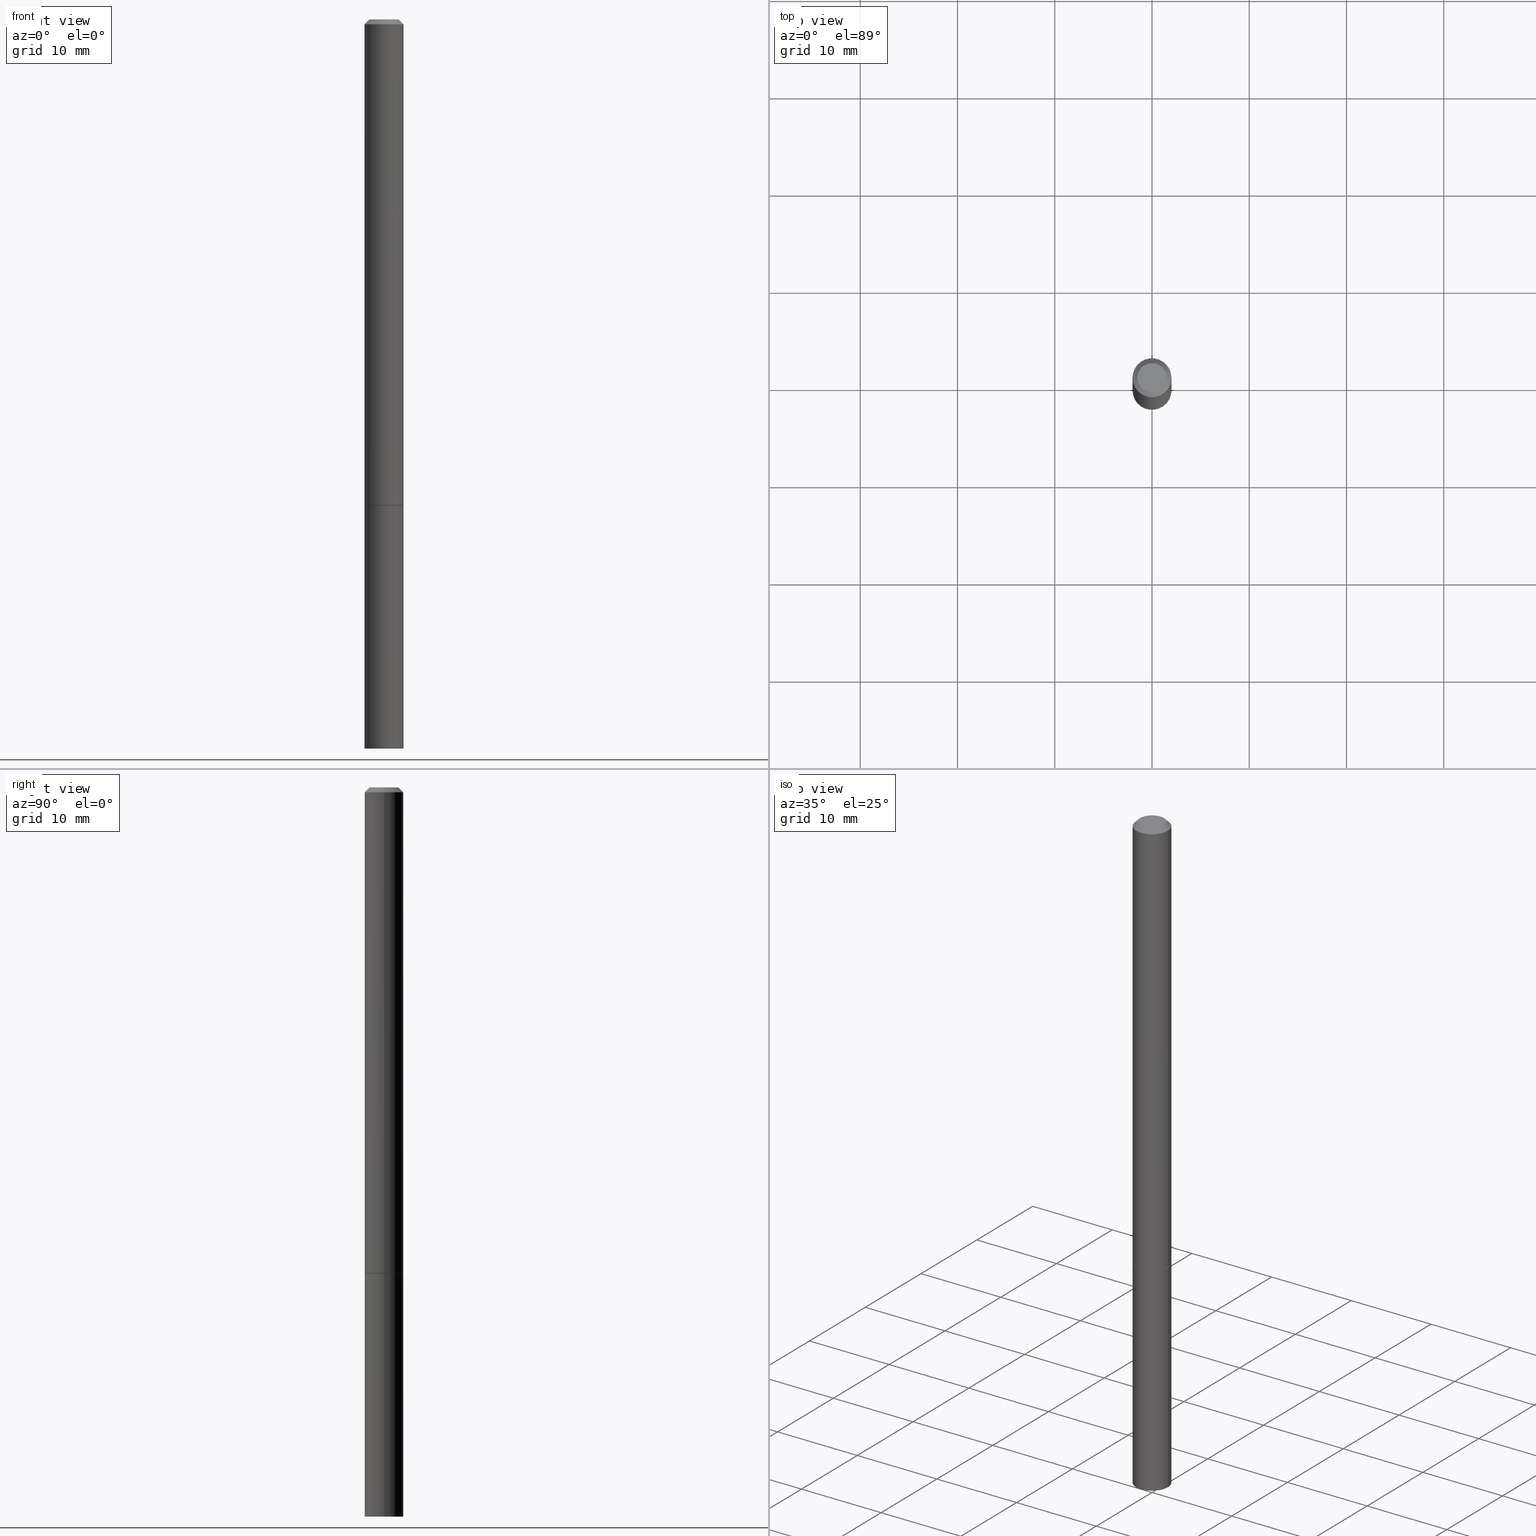
[diagram: canonical four-view strip — front | top / right | iso, engineering-drawing reading convention]
A machine part, canonical four-view strip (front | top / right | iso — engineering-drawing reading convention). The complete STEP part file that produces these views, byte-faithful:
ISO-10303-21;
HEADER;
FILE_DESCRIPTION (( 'STEP AP203' ),
    '1' );
FILE_NAME ('49402.STEP',
    '2024-02-28T19:07:56',
    ( '' ),
    ( '' ),
    'SwSTEP 2.0',
    'SolidWorks 2023',
    '' );
FILE_SCHEMA (( 'CONFIG_CONTROL_DESIGN' ));
ENDSEC;

DATA;
#1 = EDGE_LOOP ( 'NONE', ( #80, #179, #140, #161 ) ) ;
#2 = CARTESIAN_POINT ( 'NONE',  ( 5.499083108678655265E-16, 0.07874999999998968936, -2.952800000000000313 ) ) ;
#3 = ADVANCED_FACE ( 'NONE', ( #59 ), #30, .T. ) ;
#4 = DIRECTION ( 'NONE',  ( -2.445468806185136597E-29, 3.491481338843145583E-15, 1.000000000000000000 ) ) ;
#5 = CONICAL_SURFACE ( 'NONE', #202, 0.07874999999999973688, 0.7853981633974472798 ) ;
#6 = CIRCLE ( 'NONE', #42, 0.07774999999999999967 ) ;
#7 = MANIFOLD_SOLID_BREP ( 'Body-Move/Copy2[1]', #357 ) ;
#8 = DIRECTION ( 'NONE',  ( 2.438088387897960049E-29, -3.491481338843145188E-15, -1.000000000000000000 ) ) ;
#9 = CARTESIAN_POINT ( 'NONE',  ( 4.813905344975440714E-29, -6.872981015512730918E-15, -1.968499999999999694 ) ) ;
#10 = CARTESIAN_POINT ( 'NONE',  ( -0.07875000000000000056, 5.595524044110789003E-16, -3.873661383575737792E-30 ) ) ;
#11 = AXIS2_PLACEMENT_3D ( 'NONE', #90, #342, #87 ) ;
#12 = CARTESIAN_POINT ( 'NONE',  ( 4.813905344975440714E-29, -6.872981015512730918E-15, -1.968499999999999694 ) ) ;
#13 = DIRECTION ( 'NONE',  ( -2.445468806185136877E-29, 3.491481338843145188E-15, 1.000000000000000000 ) ) ;
#14 = DIRECTION ( 'NONE',  ( -2.445468806185136597E-29, 3.491481338843145583E-15, 1.000000000000000000 ) ) ;
#15 = ADVANCED_FACE ( 'NONE', ( #141 ), #5, .T. ) ;
#16 = CARTESIAN_POINT ( 'NONE',  ( 0.05874999999999976769, -5.065740507352226296E-16, 3.205406768517973136E-30 ) ) ;
#17 = ORIENTED_EDGE ( 'NONE', *, *, #259, .T. ) ;
#18 = DATE_AND_TIME ( #60, #122 ) ;
#19 = CARTESIAN_POINT ( 'NONE',  ( 4.890937612370276662E-31, -6.982962677686296539E-17, -0.02000000000000001776 ) ) ;
#20 = AXIS2_PLACEMENT_3D ( 'NONE', #261, #289, #346 ) ;
#21 = PERSON_AND_ORGANIZATION ( #86, #109 ) ;
#22 = DIRECTION ( 'NONE',  ( 2.438088387897960049E-29, -3.491481338843145188E-15, -1.000000000000000000 ) ) ;
#23 = PERSON_AND_ORGANIZATION_ROLE ( 'classification_officer' ) ;
#24 = VERTEX_POINT ( 'NONE', #359 ) ;
#25 = CC_DESIGN_DATE_AND_TIME_ASSIGNMENT ( #225, #131, ( #153 ) ) ;
#26 = APPLICATION_PROTOCOL_DEFINITION ( 'international standard', 'config_control_design', 1994, #232 ) ;
#27 = EDGE_LOOP ( 'NONE', ( #149, #45, #297, #227 ) ) ;
#28 = DIRECTION ( 'NONE',  ( 1.000000000000000000, 0.000000000000000000, 0.000000000000000000 ) ) ;
#29 = VECTOR ( 'NONE', #269, 39.37007874015748143 ) ;
#30 = CYLINDRICAL_SURFACE ( 'NONE', #214, 0.07874999999999987566 ) ;
#31 = UNCERTAINTY_MEASURE_WITH_UNIT (LENGTH_MEASURE( 1.000000000000000082E-05 ), #175, 'distance_accuracy_value', 'NONE');
#32 = DIRECTION ( 'NONE',  ( 1.000000000000000000, -6.982962677686265922E-15, 4.876176775795935232E-29 ) ) ;
#33 = DIRECTION ( 'NONE',  ( 1.000000000000000000, -6.982962677686266711E-15, 0.000000000000000000 ) ) ;
#34 = CARTESIAN_POINT ( 'NONE',  ( 4.813905344975440714E-29, -6.872981015512730918E-15, -1.968499999999999694 ) ) ;
#35 = AXIS2_PLACEMENT_3D ( 'NONE', #2, #8, #64 ) ;
#36 = CARTESIAN_POINT ( 'NONE',  ( 4.813905344975440714E-29, -6.872981015512730918E-15, -1.968499999999999694 ) ) ;
#37 = EDGE_CURVE ( 'NONE', #275, #310, #102, .T. ) ;
#38 = DIRECTION ( 'NONE',  ( -2.445468806185136597E-29, 3.491481338843145583E-15, 1.000000000000000000 ) ) ;
#39 = ADVANCED_FACE ( 'NONE', ( #220 ), #335, .F. ) ;
#40 = CARTESIAN_POINT ( 'NONE',  ( -0.07875000000000000056, -8.031761152013305527E-15, -1.968499999999999694 ) ) ;
#41 = CLOSED_SHELL ( 'NONE', ( #231, #132, #326, #15, #3, #188, #305, #39 ) ) ;
#42 = AXIS2_PLACEMENT_3D ( 'NONE', #34, #235, #119 ) ;
#43 = PRODUCT_DEFINITION ( 'UNKNOWN', '', #253, #56 ) ;
#44 = DIRECTION ( 'NONE',  ( 1.000000000000000000, -6.982962677686265922E-15, 4.876176775795935232E-29 ) ) ;
#45 = ORIENTED_EDGE ( 'NONE', *, *, #221, .T. ) ;
#46 = EDGE_LOOP ( 'NONE', ( #130, #336, #106, #330 ) ) ;
#47 = CARTESIAN_POINT ( 'NONE',  ( 0.000000000000000000, 0.000000000000000000, 0.000000000000000000 ) ) ;
#48 = AXIS2_PLACEMENT_3D ( 'NONE', #65, #38, #287 ) ;
#49 = FACE_OUTER_BOUND ( 'NONE', #366, .T. ) ;
#50 = EDGE_CURVE ( 'NONE', #180, #337, #53, .T. ) ;
#51 = COORDINATED_UNIVERSAL_TIME_OFFSET ( 5, 0, .BEHIND. ) ;
#52 = ORIENTED_EDGE ( 'NONE', *, *, #259, .F. ) ;
#53 = LINE ( 'NONE', #135, #209 ) ;
#54 = CIRCLE ( 'NONE', #78, 0.05874999999999976769 ) ;
#55 = CIRCLE ( 'NONE', #358, 0.07875000000000000056 ) ;
#56 = DESIGN_CONTEXT ( 'detailed design', #232, 'design' ) ;
#57 = ORIENTED_EDGE ( 'NONE', *, *, #362, .T. ) ;
#58 = CALENDAR_DATE ( 2024, 28, 2 ) ;
#59 = FACE_OUTER_BOUND ( 'NONE', #186, .T. ) ;
#60 = CALENDAR_DATE ( 2024, 28, 2 ) ;
#61 = ORIENTED_EDGE ( 'NONE', *, *, #37, .T. ) ;
#62 = CIRCLE ( 'NONE', #332, 0.07774999999999999967 ) ;
#63 = DIRECTION ( 'NONE',  ( 1.000000000000000000, -6.982962677686261977E-15, 0.000000000000000000 ) ) ;
#64 = DIRECTION ( 'NONE',  ( -1.000000000000000000, 6.982962677686265922E-15, -4.876176775795935793E-29 ) ) ;
#65 = CARTESIAN_POINT ( 'NONE',  ( 4.813905344975440714E-29, -6.872981015512730918E-15, -1.968499999999999694 ) ) ;
#66 = CARTESIAN_POINT ( 'NONE',  ( -0.07875000000000000056, -8.031761152013305527E-15, -2.952799999999999869 ) ) ;
#67 = VECTOR ( 'NONE', #205, 39.37007874015748143 ) ;
#68 = CC_DESIGN_APPROVAL ( #262, ( #153 ) ) ;
#69 = FACE_OUTER_BOUND ( 'NONE', #251, .T. ) ;
#70 = CARTESIAN_POINT ( 'NONE',  ( 4.890937612370276662E-31, -6.982962677686296539E-17, -0.02000000000000001776 ) ) ;
#71 = VECTOR ( 'NONE', #168, 39.37007874015748143 ) ;
#72 =( NAMED_UNIT ( * ) SI_UNIT ( $, .STERADIAN. ) SOLID_ANGLE_UNIT ( ) );
#73 = ORIENTED_EDGE ( 'NONE', *, *, #146, .T. ) ;
#74 = AXIS2_PLACEMENT_3D ( 'NONE', #344, #201, #234 ) ;
#75 = COORDINATED_UNIVERSAL_TIME_OFFSET ( 5, 0, .BEHIND. ) ;
#76 = DIRECTION ( 'NONE',  ( 1.000000000000000000, -6.982962677686266711E-15, 4.876176775795935793E-29 ) ) ;
#77 = ORIENTED_EDGE ( 'NONE', *, *, #324, .F. ) ;
#78 = AXIS2_PLACEMENT_3D ( 'NONE', #291, #91, #236 ) ;
#79 = DATE_AND_TIME ( #137, #334 ) ;
#80 = ORIENTED_EDGE ( 'NONE', *, *, #197, .T. ) ;
#81 = APPROVAL_STATUS ( 'not_yet_approved' ) ;
#82 = VERTEX_POINT ( 'NONE', #361 ) ;
#83 = FACE_OUTER_BOUND ( 'NONE', #281, .T. ) ;
#84 = CC_DESIGN_PERSON_AND_ORGANIZATION_ASSIGNMENT ( #244, #185, ( #253 ) ) ;
#85 = AXIS2_PLACEMENT_3D ( 'NONE', #242, #327, #355 ) ;
#86 = PERSON ( 'UNSPECIFIED', 'UNSPECIFIED', 'UNSPECIFIED', ('UNSPECIFIED'), ('UNSPECIFIED'), ('UNSPECIFIED') ) ;
#87 = DIRECTION ( 'NONE',  ( 1.000000000000000000, -6.982962677686261977E-15, 0.000000000000000000 ) ) ;
#88 = CARTESIAN_POINT ( 'NONE',  ( -0.07874999999999987566, 5.595524044110780128E-16, -3.873661383575732186E-30 ) ) ;
#89 = DIRECTION ( 'NONE',  ( -2.445468806185136597E-29, 3.491481338843145583E-15, 1.000000000000000000 ) ) ;
#90 = CARTESIAN_POINT ( 'NONE',  ( 4.811459876169255671E-29, -6.869489534173887122E-15, -1.967499999999999805 ) ) ;
#91 = DIRECTION ( 'NONE',  ( -2.445468806185136597E-29, 3.491481338843145583E-15, 1.000000000000000000 ) ) ;
#92 = DIRECTION ( 'NONE',  ( -2.445468806185136597E-29, 3.491481338843145583E-15, 1.000000000000000000 ) ) ;
#93 = FACE_OUTER_BOUND ( 'NONE', #217, .T. ) ;
#94 = AXIS2_PLACEMENT_3D ( 'NONE', #298, #176, #294 ) ;
#95 = EDGE_CURVE ( 'NONE', #180, #341, #62, .T. ) ;
#96 = CARTESIAN_POINT ( 'NONE',  ( 0.000000000000000000, 0.000000000000000000, 0.000000000000000000 ) ) ;
#97 = ORIENTED_EDGE ( 'NONE', *, *, #105, .T. ) ;
#98 = ADVANCED_FACE ( 'NONE', ( #144 ), #117, .T. ) ;
#99 = CARTESIAN_POINT ( 'NONE',  ( -0.07774999999999999967, -6.315235584111030723E-15, -1.968499999999999694 ) ) ;
#100 = COORDINATED_UNIVERSAL_TIME_OFFSET ( 5, 0, .BEHIND. ) ;
#101 = ORIENTED_EDGE ( 'NONE', *, *, #105, .F. ) ;
#102 = CIRCLE ( 'NONE', #252, 0.05874999999999976769 ) ;
#103 = AXIS2_PLACEMENT_3D ( 'NONE', #120, #290, #318 ) ;
#104 = CARTESIAN_POINT ( 'NONE',  ( 0.000000000000000000, 0.000000000000000000, 0.000000000000000000 ) ) ;
#105 = EDGE_CURVE ( 'NONE', #341, #180, #6, .T. ) ;
#106 = ORIENTED_EDGE ( 'NONE', *, *, #324, .T. ) ;
#107 = ORIENTED_EDGE ( 'NONE', *, *, #155, .F. ) ;
#108 = VECTOR ( 'NONE', #13, 39.37007874015748143 ) ;
#109 = ORGANIZATION ( 'UNSPECIFIED', 'UNSPECIFIED', '' ) ;
#110 = COORDINATED_UNIVERSAL_TIME_OFFSET ( 5, 0, .BEHIND. ) ;
#111 = VERTEX_POINT ( 'NONE', #230 ) ;
#112 = EDGE_CURVE ( 'NONE', #24, #82, #224, .T. ) ;
#113 = ORIENTED_EDGE ( 'NONE', *, *, #362, .F. ) ;
#114 = DIMENSIONAL_EXPONENTS ( 1.000000000000000000, 0.000000000000000000, 0.000000000000000000, 0.000000000000000000, 0.000000000000000000, 0.000000000000000000, 0.000000000000000000 ) ;
#115 = DIRECTION ( 'NONE',  ( -2.445468806185136597E-29, 3.491481338843145583E-15, 1.000000000000000000 ) ) ;
#116 = AXIS2_PLACEMENT_3D ( 'NONE', #47, #14, #44 ) ;
#117 = CYLINDRICAL_SURFACE ( 'NONE', #166, 0.07875000000000000056 ) ;
#118 = PLANE ( 'NONE',  #103 ) ;
#119 = DIRECTION ( 'NONE',  ( 1.000000000000000000, -6.982962677686261977E-15, 0.000000000000000000 ) ) ;
#120 = CARTESIAN_POINT ( 'NONE',  ( 5.499083108678415648E-16, 0.07874999999999311717, -1.968500000000000139 ) ) ;
#121 = AXIS2_PLACEMENT_3D ( 'NONE', #187, #22, #307 ) ;
#122 = LOCAL_TIME ( 14, 7, 56.00000000000000000, #75 ) ;
#123 = DIRECTION ( 'NONE',  ( -0.7071067811865232589, 7.493145998870265808E-15, 0.7071067811865715536 ) ) ;
#124 = DIRECTION ( 'NONE',  ( -1.000000000000000000, 6.982962677686266711E-15, 0.000000000000000000 ) ) ;
#125 = MANIFOLD_SOLID_BREP ( 'Body-Move/Copy2[2]', #41 ) ;
#126 = AXIS2_PLACEMENT_3D ( 'NONE', #70, #154, #124 ) ;
#127 = APPROVAL ( #276, 'UNSPECIFIED' ) ;
#128 = PLANE ( 'NONE',  #85 ) ;
#129 = CARTESIAN_POINT ( 'NONE',  ( -0.07874999999999973688, 4.800786840909286670E-16, -0.02000000000000001776 ) ) ;
#130 = ORIENTED_EDGE ( 'NONE', *, *, #283, .F. ) ;
#131 = DATE_TIME_ROLE ( 'classification_date' ) ;
#132 = ADVANCED_FACE ( 'NONE', ( #83 ), #172, .T. ) ;
#133 = DIRECTION ( 'NONE',  ( -1.000000000000000000, 6.982962677686266711E-15, 0.000000000000000000 ) ) ;
#134 = SHAPE_DEFINITION_REPRESENTATION ( #302, #256 ) ;
#135 = CARTESIAN_POINT ( 'NONE',  ( 0.07774999999999999967, -7.415906363702837461E-15, -1.968499999999999694 ) ) ;
#136 = APPLICATION_CONTEXT ( 'configuration controlled 3d designs of mechanical parts and assemblies' ) ;
#137 = CALENDAR_DATE ( 2024, 28, 2 ) ;
#138 = ORIENTED_EDGE ( 'NONE', *, *, #283, .T. ) ;
#139 = APPROVAL_DATE_TIME ( #79, #127 ) ;
#140 = ORIENTED_EDGE ( 'NONE', *, *, #349, .F. ) ;
#141 = FACE_OUTER_BOUND ( 'NONE', #46, .T. ) ;
#142 = CARTESIAN_POINT ( 'NONE',  ( 0.000000000000000000, 0.000000000000000000, 0.000000000000000000 ) ) ;
#143 = CARTESIAN_POINT ( 'NONE',  ( 7.220980290903470182E-29, -1.030964609733603853E-14, -2.952799999999999869 ) ) ;
#144 = FACE_OUTER_BOUND ( 'NONE', #1, .T. ) ;
#145 = DIRECTION ( 'NONE',  ( -2.445468806185136597E-29, 3.491481338843145583E-15, 1.000000000000000000 ) ) ;
#146 = EDGE_CURVE ( 'NONE', #223, #24, #233, .T. ) ;
#147 = DIRECTION ( 'NONE',  ( -2.445468806185136597E-29, 3.491481338843145583E-15, 1.000000000000000000 ) ) ;
#148 = DIRECTION ( 'NONE',  ( 1.000000000000000000, -6.982962677686261977E-15, 0.000000000000000000 ) ) ;
#149 = ORIENTED_EDGE ( 'NONE', *, *, #237, .F. ) ;
#150 = CC_DESIGN_PERSON_AND_ORGANIZATION_ASSIGNMENT ( #365, #23, ( #153 ) ) ;
#151 = CARTESIAN_POINT ( 'NONE',  ( 0.07874999999999987566, -5.499083108677926554E-16, 3.839989210939293411E-30 ) ) ;
#152 = CONICAL_SURFACE ( 'NONE', #126, 0.07874999999999973688, 0.7853981633974472798 ) ;
#153 = SECURITY_CLASSIFICATION ( '', '', #278 ) ;
#154 = DIRECTION ( 'NONE',  ( 2.445468806185136597E-29, -3.491481338843145583E-15, -1.000000000000000000 ) ) ;
#155 = EDGE_CURVE ( 'NONE', #223, #337, #265, .T. ) ;
#156 = PERSON_AND_ORGANIZATION_ROLE ( 'creator' ) ;
#157 = ORIENTED_EDGE ( 'NONE', *, *, #95, .T. ) ;
#158 = APPROVAL_STATUS ( 'not_yet_approved' ) ;
#159 = ORIENTED_EDGE ( 'NONE', *, *, #349, .T. ) ;
#160 = PERSON_AND_ORGANIZATION ( #86, #109 ) ;
#161 = ORIENTED_EDGE ( 'NONE', *, *, #285, .F. ) ;
#162 = PERSON_AND_ORGANIZATION ( #86, #109 ) ;
#163 = CARTESIAN_POINT ( 'NONE',  ( 0.000000000000000000, 0.000000000000000000, 0.000000000000000000 ) ) ;
#164 = PERSON_AND_ORGANIZATION ( #86, #109 ) ;
#165 = VERTEX_POINT ( 'NONE', #198 ) ;
#166 = AXIS2_PLACEMENT_3D ( 'NONE', #142, #170, #32 ) ;
#167 = CC_DESIGN_SECURITY_CLASSIFICATION ( #153, ( #253 ) ) ;
#168 = DIRECTION ( 'NONE',  ( -2.445468806185136877E-29, 3.491481338843145188E-15, 1.000000000000000000 ) ) ;
#169 = DIRECTION ( 'NONE',  ( 1.000000000000000000, -6.982962677686261977E-15, 0.000000000000000000 ) ) ;
#170 = DIRECTION ( 'NONE',  ( -2.445468806185136597E-29, 3.491481338843145583E-15, 1.000000000000000000 ) ) ;
#171 = CIRCLE ( 'NONE', #191, 0.07875000000000000056 ) ;
#172 = CYLINDRICAL_SURFACE ( 'NONE', #74, 0.07874999999999987566 ) ;
#173 = CARTESIAN_POINT ( 'NONE',  ( 4.813905344975440714E-29, -6.872981015512730918E-15, -1.968499999999999694 ) ) ;
#174 = ADVANCED_FACE ( 'NONE', ( #323 ), #203, .T. ) ;
#175 =( CONVERSION_BASED_UNIT ( 'INCH', #354 ) LENGTH_UNIT ( ) NAMED_UNIT ( #114 ) );
#176 = DIRECTION ( 'NONE',  ( -2.445468806185136597E-29, 3.491481338843145583E-15, 1.000000000000000000 ) ) ;
#177 =( GEOMETRIC_REPRESENTATION_CONTEXT ( 3 ) GLOBAL_UNCERTAINTY_ASSIGNED_CONTEXT ( ( #31 ) ) GLOBAL_UNIT_ASSIGNED_CONTEXT ( ( #175, #352, #72 ) ) REPRESENTATION_CONTEXT ( 'NONE', 'WORKASPACE' ) );
#178 = CC_DESIGN_APPROVAL ( #127, ( #43 ) ) ;
#179 = ORIENTED_EDGE ( 'NONE', *, *, #237, .T. ) ;
#180 = VERTEX_POINT ( 'NONE', #257 ) ;
#181 = CYLINDRICAL_SURFACE ( 'NONE', #116, 0.07875000000000000056 ) ;
#182 = CIRCLE ( 'NONE', #216, 0.07874999999999973688 ) ;
#183 = APPROVAL_PERSON_ORGANIZATION ( #21, #215, #363 ) ;
#184 = ADVANCED_FACE ( 'NONE', ( #319 ), #118, .F. ) ;
#185 = PERSON_AND_ORGANIZATION_ROLE ( 'design_supplier' ) ;
#186 = EDGE_LOOP ( 'NONE', ( #212, #193, #241, #300 ) ) ;
#187 = CARTESIAN_POINT ( 'NONE',  ( 4.102490573140664535E-16, 0.05874999999999976769, -2.051245286570339909E-16 ) ) ;
#188 = ADVANCED_FACE ( 'NONE', ( #320 ), #229, .T. ) ;
#189 = PERSON_AND_ORGANIZATION_ROLE ( 'creator' ) ;
#190 = DIRECTION ( 'NONE',  ( -2.445468806185136597E-29, 3.491481338843145583E-15, 1.000000000000000000 ) ) ;
#191 = AXIS2_PLACEMENT_3D ( 'NONE', #12, #92, #148 ) ;
#192 = PRODUCT_RELATED_PRODUCT_CATEGORY ( 'detail', '', ( #271 ) ) ;
#193 = ORIENTED_EDGE ( 'NONE', *, *, #155, .T. ) ;
#194 = PERSON_AND_ORGANIZATION ( #86, #109 ) ;
#195 = ORIENTED_EDGE ( 'NONE', *, *, #50, .F. ) ;
#196 = DIRECTION ( 'NONE',  ( 1.000000000000000000, -6.982962677686261977E-15, 0.000000000000000000 ) ) ;
#197 = EDGE_CURVE ( 'NONE', #111, #226, #55, .T. ) ;
#198 = CARTESIAN_POINT ( 'NONE',  ( 0.07875000000000000056, -7.422889326380523475E-15, -1.968499999999999694 ) ) ;
#199 = DIRECTION ( 'NONE',  ( -2.445468806185136877E-29, 3.491481338843145188E-15, 1.000000000000000000 ) ) ;
#200 = EDGE_CURVE ( 'NONE', #295, #165, #282, .T. ) ;
#201 = DIRECTION ( 'NONE',  ( -2.445468806185136597E-29, 3.491481338843145583E-15, 1.000000000000000000 ) ) ;
#202 = AXIS2_PLACEMENT_3D ( 'NONE', #19, #279, #133 ) ;
#203 = PLANE ( 'NONE',  #35 ) ;
#204 = CC_DESIGN_PERSON_AND_ORGANIZATION_ASSIGNMENT ( #160, #303, ( #271 ) ) ;
#205 = DIRECTION ( 'NONE',  ( -2.445468806185136877E-29, 3.491481338843145188E-15, 1.000000000000000000 ) ) ;
#206 = EDGE_CURVE ( 'NONE', #82, #24, #182, .T. ) ;
#207 =( LENGTH_UNIT ( ) NAMED_UNIT ( * ) SI_UNIT ( $, .METRE. ) );
#208 = AXIS2_PLACEMENT_3D ( 'NONE', #36, #4, #169 ) ;
#209 = VECTOR ( 'NONE', #248, 39.37007874015748854 ) ;
#210 = EDGE_LOOP ( 'NONE', ( #353, #61 ) ) ;
#211 = LINE ( 'NONE', #129, #309 ) ;
#212 = ORIENTED_EDGE ( 'NONE', *, *, #146, .F. ) ;
#213 = DATE_AND_TIME ( #58, #328 ) ;
#214 = AXIS2_PLACEMENT_3D ( 'NONE', #163, #272, #304 ) ;
#215 = APPROVAL ( #158, 'UNSPECIFIED' ) ;
#216 = AXIS2_PLACEMENT_3D ( 'NONE', #286, #145, #33 ) ;
#217 = EDGE_LOOP ( 'NONE', ( #222, #138, #351, #77 ) ) ;
#218 = LOCAL_TIME ( 14, 7, 56.00000000000000000, #100 ) ;
#219 = APPROVAL_ROLE ( '' ) ;
#220 = FACE_OUTER_BOUND ( 'NONE', #210, .T. ) ;
#221 = EDGE_CURVE ( 'NONE', #226, #111, #292, .T. ) ;
#222 = ORIENTED_EDGE ( 'NONE', *, *, #37, .F. ) ;
#223 = VERTEX_POINT ( 'NONE', #315 ) ;
#224 = CIRCLE ( 'NONE', #20, 0.07874999999999973688 ) ;
#225 = DATE_AND_TIME ( #338, #218 ) ;
#226 = VERTEX_POINT ( 'NONE', #66 ) ;
#227 = ORIENTED_EDGE ( 'NONE', *, *, #200, .F. ) ;
#228 = DIRECTION ( 'NONE',  ( 1.000000000000000000, -6.982962677686261977E-15, 0.000000000000000000 ) ) ;
#229 = CONICAL_SURFACE ( 'NONE', #48, 0.07774999999999999967, 0.7853981633974141952 ) ;
#230 = CARTESIAN_POINT ( 'NONE',  ( 0.07875000000000000056, -1.085955440820383187E-14, -2.952799999999999869 ) ) ;
#231 = ADVANCED_FACE ( 'NONE', ( #69 ), #316, .T. ) ;
#232 = APPLICATION_CONTEXT ( 'configuration controlled 3d designs of mechanical parts and assemblies' ) ;
#233 = LINE ( 'NONE', #88, #347 ) ;
#234 = DIRECTION ( 'NONE',  ( 1.000000000000000000, -6.982962677686266711E-15, 4.876176775795935793E-29 ) ) ;
#235 = DIRECTION ( 'NONE',  ( -2.445468806185136597E-29, 3.491481338843145583E-15, 1.000000000000000000 ) ) ;
#236 = DIRECTION ( 'NONE',  ( 1.000000000000000000, -6.982962677686266711E-15, 4.876176775795935793E-29 ) ) ;
#237 = EDGE_CURVE ( 'NONE', #226, #295, #264, .T. ) ;
#238 = CARTESIAN_POINT ( 'NONE',  ( -0.07774999999999999967, -6.320534038459253125E-15, -1.968499999999999694 ) ) ;
#239 = AXIS2_PLACEMENT_3D ( 'NONE', #143, #263, #258 ) ;
#240 = FACE_OUTER_BOUND ( 'NONE', #27, .T. ) ;
#241 = ORIENTED_EDGE ( 'NONE', *, *, #243, .T. ) ;
#242 = CARTESIAN_POINT ( 'NONE',  ( 4.813905344975440714E-29, -6.872981015512730918E-15, -1.968499999999999694 ) ) ;
#243 = EDGE_CURVE ( 'NONE', #337, #82, #284, .T. ) ;
#244 = PERSON_AND_ORGANIZATION ( #86, #109 ) ;
#245 = EDGE_LOOP ( 'NONE', ( #113, #97, #249, #107 ) ) ;
#246 = APPROVAL_DATE_TIME ( #18, #262 ) ;
#247 = ORIENTED_EDGE ( 'NONE', *, *, #200, .T. ) ;
#248 = DIRECTION ( 'NONE',  ( 0.7071067811865232589, -2.468850131082003836E-15, 0.7071067811865715536 ) ) ;
#249 = ORIENTED_EDGE ( 'NONE', *, *, #50, .T. ) ;
#250 = CALENDAR_DATE ( 2024, 28, 2 ) ;
#251 = EDGE_LOOP ( 'NONE', ( #157, #57, #52, #195 ) ) ;
#252 = AXIS2_PLACEMENT_3D ( 'NONE', #104, #190, #76 ) ;
#253 = PRODUCT_DEFINITION_FORMATION_WITH_SPECIFIED_SOURCE ( 'ANY', '', #271, .NOT_KNOWN. ) ;
#254 = EDGE_CURVE ( 'NONE', #310, #275, #54, .T. ) ;
#255 = ORIENTED_EDGE ( 'NONE', *, *, #95, .F. ) ;
#256 = ADVANCED_BREP_SHAPE_REPRESENTATION ( '49402', ( #7, #125, #321 ), #177 ) ;
#257 = CARTESIAN_POINT ( 'NONE',  ( 0.07774999999999999967, -7.415906363702837461E-15, -1.968499999999999694 ) ) ;
#258 = DIRECTION ( 'NONE',  ( 1.000000000000000000, -6.982962677686261977E-15, 0.000000000000000000 ) ) ;
#259 = EDGE_CURVE ( 'NONE', #337, #223, #260, .T. ) ;
#260 = CIRCLE ( 'NONE', #94, 0.07875000000000000056 ) ;
#261 = CARTESIAN_POINT ( 'NONE',  ( 4.890937612370276662E-31, -6.982962677686296539E-17, -0.02000000000000001776 ) ) ;
#262 = APPROVAL ( #81, 'UNSPECIFIED' ) ;
#263 = DIRECTION ( 'NONE',  ( -2.445468806185136597E-29, 3.491481338843145583E-15, 1.000000000000000000 ) ) ;
#264 = LINE ( 'NONE', #10, #71 ) ;
#265 = CIRCLE ( 'NONE', #11, 0.07875000000000000056 ) ;
#266 = DIRECTION ( 'NONE',  ( -0.7071067811865467956, 2.468850131082249172E-15, -0.7071067811865482389 ) ) ;
#267 = LINE ( 'NONE', #350, #108 ) ;
#268 = ORIENTED_EDGE ( 'NONE', *, *, #197, .F. ) ;
#269 = DIRECTION ( 'NONE',  ( 0.7071067811865467956, -7.319954787623254468E-15, -0.7071067811865482389 ) ) ;
#270 = APPROVAL_PERSON_ORGANIZATION ( #194, #127, #219 ) ;
#271 = PRODUCT ( '49402', '49402', '', ( #333 ) ) ;
#272 = DIRECTION ( 'NONE',  ( -2.445468806185136597E-29, 3.491481338843145583E-15, 1.000000000000000000 ) ) ;
#273 = CC_DESIGN_DATE_AND_TIME_ASSIGNMENT ( #311, #280, ( #43 ) ) ;
#274 = AXIS2_PLACEMENT_3D ( 'NONE', #173, #147, #63 ) ;
#275 = VERTEX_POINT ( 'NONE', #16 ) ;
#276 = APPROVAL_STATUS ( 'not_yet_approved' ) ;
#277 = EDGE_LOOP ( 'NONE', ( #159, #247 ) ) ;
#278 = SECURITY_CLASSIFICATION_LEVEL ( 'unclassified' ) ;
#279 = DIRECTION ( 'NONE',  ( 2.445468806185136597E-29, -3.491481338843145583E-15, -1.000000000000000000 ) ) ;
#280 = DATE_TIME_ROLE ( 'creation_date' ) ;
#281 = EDGE_LOOP ( 'NONE', ( #17, #73, #314, #312 ) ) ;
#282 = CIRCLE ( 'NONE', #208, 0.07875000000000000056 ) ;
#283 = EDGE_CURVE ( 'NONE', #275, #82, #296, .T. ) ;
#284 = LINE ( 'NONE', #151, #67 ) ;
#285 = EDGE_CURVE ( 'NONE', #111, #165, #267, .T. ) ;
#286 = CARTESIAN_POINT ( 'NONE',  ( 4.890937612370276662E-31, -6.982962677686296539E-17, -0.02000000000000001776 ) ) ;
#287 = DIRECTION ( 'NONE',  ( 1.000000000000000000, -6.982962677686261977E-15, 0.000000000000000000 ) ) ;
#288 = VECTOR ( 'NONE', #123, 39.37007874015748854 ) ;
#289 = DIRECTION ( 'NONE',  ( -2.445468806185136597E-29, 3.491481338843145583E-15, 1.000000000000000000 ) ) ;
#290 = DIRECTION ( 'NONE',  ( 2.438088387897960049E-29, -3.491481338843145188E-15, -1.000000000000000000 ) ) ;
#291 = CARTESIAN_POINT ( 'NONE',  ( 0.000000000000000000, 0.000000000000000000, 0.000000000000000000 ) ) ;
#292 = CIRCLE ( 'NONE', #239, 0.07875000000000000056 ) ;
#293 = CC_DESIGN_APPROVAL ( #215, ( #253 ) ) ;
#294 = DIRECTION ( 'NONE',  ( 1.000000000000000000, -6.982962677686261977E-15, 0.000000000000000000 ) ) ;
#295 = VERTEX_POINT ( 'NONE', #40 ) ;
#296 = LINE ( 'NONE', #331, #29 ) ;
#297 = ORIENTED_EDGE ( 'NONE', *, *, #285, .T. ) ;
#298 = CARTESIAN_POINT ( 'NONE',  ( 4.811459876169255671E-29, -6.869489534173887122E-15, -1.967499999999999805 ) ) ;
#299 = ADVANCED_FACE ( 'NONE', ( #240 ), #181, .T. ) ;
#300 = ORIENTED_EDGE ( 'NONE', *, *, #112, .F. ) ;
#301 = APPLICATION_PROTOCOL_DEFINITION ( 'international standard', 'config_control_design', 1994, #136 ) ;
#302 = PRODUCT_DEFINITION_SHAPE ( 'NONE', 'NONE',  #43 ) ;
#303 = PERSON_AND_ORGANIZATION_ROLE ( 'design_owner' ) ;
#304 = DIRECTION ( 'NONE',  ( 1.000000000000000000, -6.982962677686266711E-15, 4.876176775795935793E-29 ) ) ;
#305 = ADVANCED_FACE ( 'NONE', ( #49 ), #128, .F. ) ;
#306 = DIRECTION ( 'NONE',  ( 0.000000000000000000, 0.000000000000000000, 1.000000000000000000 ) ) ;
#307 = DIRECTION ( 'NONE',  ( -1.000000000000000000, 6.982962677686265922E-15, -4.876176775795935793E-29 ) ) ;
#308 = APPROVAL_ROLE ( '' ) ;
#309 = VECTOR ( 'NONE', #266, 39.37007874015748143 ) ;
#310 = VERTEX_POINT ( 'NONE', #325 ) ;
#311 = DATE_AND_TIME ( #250, #322 ) ;
#312 = ORIENTED_EDGE ( 'NONE', *, *, #243, .F. ) ;
#313 = COORDINATED_UNIVERSAL_TIME_OFFSET ( 5, 0, .BEHIND. ) ;
#314 = ORIENTED_EDGE ( 'NONE', *, *, #206, .F. ) ;
#315 = CARTESIAN_POINT ( 'NONE',  ( -0.07875000000000000056, -2.910107176064290492E-15, -1.967499999999999805 ) ) ;
#316 = CONICAL_SURFACE ( 'NONE', #274, 0.07774999999999999967, 0.7853981633974141952 ) ;
#317 = APPROVAL_PERSON_ORGANIZATION ( #356, #262, #308 ) ;
#318 = DIRECTION ( 'NONE',  ( -1.000000000000000000, 6.982962677686265922E-15, -4.876176775795935793E-29 ) ) ;
#319 = FACE_OUTER_BOUND ( 'NONE', #277, .T. ) ;
#320 = FACE_OUTER_BOUND ( 'NONE', #245, .T. ) ;
#321 = AXIS2_PLACEMENT_3D ( 'NONE', #96, #306, #28 ) ;
#322 = LOCAL_TIME ( 14, 7, 56.00000000000000000, #51 ) ;
#323 = FACE_OUTER_BOUND ( 'NONE', #340, .T. ) ;
#324 = EDGE_CURVE ( 'NONE', #310, #24, #211, .T. ) ;
#325 = CARTESIAN_POINT ( 'NONE',  ( -0.05874999999999976769, 4.451638707024976095E-16, -2.990994270918715236E-30 ) ) ;
#326 = ADVANCED_FACE ( 'NONE', ( #93 ), #152, .T. ) ;
#327 = DIRECTION ( 'NONE',  ( -2.438088387897960049E-29, 3.491481338843145188E-15, 1.000000000000000000 ) ) ;
#328 = LOCAL_TIME ( 14, 7, 56.00000000000000000, #313 ) ;
#329 = CARTESIAN_POINT ( 'NONE',  ( 0.07875000000000000056, -7.419397845041680468E-15, -1.967499999999999805 ) ) ;
#330 = ORIENTED_EDGE ( 'NONE', *, *, #112, .T. ) ;
#331 = CARTESIAN_POINT ( 'NONE',  ( 0.07874999999999973688, -6.100938441013694129E-16, -0.02000000000000001776 ) ) ;
#332 = AXIS2_PLACEMENT_3D ( 'NONE', #9, #115, #228 ) ;
#333 = MECHANICAL_CONTEXT ( 'NONE', #136, 'mechanical' ) ;
#334 = LOCAL_TIME ( 14, 7, 56.00000000000000000, #110 ) ;
#335 = PLANE ( 'NONE',  #121 ) ;
#336 = ORIENTED_EDGE ( 'NONE', *, *, #254, .F. ) ;
#337 = VERTEX_POINT ( 'NONE', #329 ) ;
#338 = CALENDAR_DATE ( 2024, 28, 2 ) ;
#339 = CC_DESIGN_PERSON_AND_ORGANIZATION_ASSIGNMENT ( #162, #189, ( #253 ) ) ;
#340 = EDGE_LOOP ( 'NONE', ( #268, #364 ) ) ;
#341 = VERTEX_POINT ( 'NONE', #99 ) ;
#342 = DIRECTION ( 'NONE',  ( -2.445468806185136597E-29, 3.491481338843145583E-15, 1.000000000000000000 ) ) ;
#343 = CC_DESIGN_PERSON_AND_ORGANIZATION_ASSIGNMENT ( #164, #156, ( #43 ) ) ;
#344 = CARTESIAN_POINT ( 'NONE',  ( 0.000000000000000000, 0.000000000000000000, 0.000000000000000000 ) ) ;
#345 = CARTESIAN_POINT ( 'NONE',  ( 7.220980290903470182E-29, -1.030964609733603853E-14, -2.952799999999999869 ) ) ;
#346 = DIRECTION ( 'NONE',  ( 1.000000000000000000, -6.982962677686266711E-15, 0.000000000000000000 ) ) ;
#347 = VECTOR ( 'NONE', #199, 39.37007874015748143 ) ;
#348 = LINE ( 'NONE', #238, #288 ) ;
#349 = EDGE_CURVE ( 'NONE', #165, #295, #171, .T. ) ;
#350 = CARTESIAN_POINT ( 'NONE',  ( 0.07875000000000000056, -5.499083108677934443E-16, 3.839989210939299016E-30 ) ) ;
#351 = ORIENTED_EDGE ( 'NONE', *, *, #206, .T. ) ;
#352 =( NAMED_UNIT ( * ) PLANE_ANGLE_UNIT ( ) SI_UNIT ( $, .RADIAN. ) );
#353 = ORIENTED_EDGE ( 'NONE', *, *, #254, .T. ) ;
#354 = LENGTH_MEASURE_WITH_UNIT ( LENGTH_MEASURE( 0.02539999999999999897 ), #207 );
#355 = DIRECTION ( 'NONE',  ( 1.000000000000000000, -6.982962677686265922E-15, 4.876176775795935793E-29 ) ) ;
#356 = PERSON_AND_ORGANIZATION ( #86, #109 ) ;
#357 = CLOSED_SHELL ( 'NONE', ( #98, #174, #184, #299 ) ) ;
#358 = AXIS2_PLACEMENT_3D ( 'NONE', #345, #89, #196 ) ;
#359 = CARTESIAN_POINT ( 'NONE',  ( -0.07874999999999973688, 4.800786840909286670E-16, -0.02000000000000001776 ) ) ;
#360 = APPROVAL_DATE_TIME ( #213, #215 ) ;
#361 = CARTESIAN_POINT ( 'NONE',  ( 0.07874999999999973688, -6.100938441013694129E-16, -0.02000000000000001776 ) ) ;
#362 = EDGE_CURVE ( 'NONE', #341, #223, #348, .T. ) ;
#363 = APPROVAL_ROLE ( '' ) ;
#364 = ORIENTED_EDGE ( 'NONE', *, *, #221, .F. ) ;
#365 = PERSON_AND_ORGANIZATION ( #86, #109 ) ;
#366 = EDGE_LOOP ( 'NONE', ( #255, #101 ) ) ;
ENDSEC;
END-ISO-10303-21;
